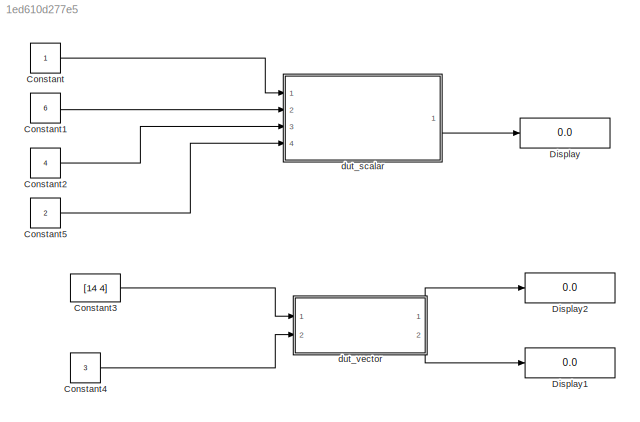
MODEL slx_1ed610d277e5
KIND model
CONFIG AbsTol = auto
CONFIG FixedStep = auto
CONFIG MaxStep = auto
CONFIG MinStep = auto
CONFIG RelTol = 1e-3
CONFIG SampleTimeConstraint = Unconstrained
CONFIG Solver = FixedStepDiscrete
CONFIG SolverMode = SingleTasking
CONFIG SolverName = FixedStepDiscrete
CONFIG StartTime = 0.0
CONFIG StopTime = 3
BLOCK [Constant] Constant
  OutDataTypeStr = int8
  SampleTime = 1
BLOCK [Constant] Constant1
  OutDataTypeStr = int8
  SampleTime = 1
  Value = 6
BLOCK [Constant] Constant2
  OutDataTypeStr = int8
  SampleTime = 1
  Value = 4
BLOCK [Constant] Constant3
  OutDataTypeStr = int8
  SampleTime = 1
  Value = [14 4]
BLOCK [Constant] Constant4
  OutDataTypeStr = int8
  SampleTime = 1
  Value = 3
BLOCK [Constant] Constant5
  OutDataTypeStr = int8
  SampleTime = 1
  Value = 2
BLOCK [Display] Display
  Decimation = 1
  Ports = [1]
BLOCK [Display] Display1
  Decimation = 1
  Ports = [1]
BLOCK [Display] Display2
  Decimation = 1
  Ports = [1]
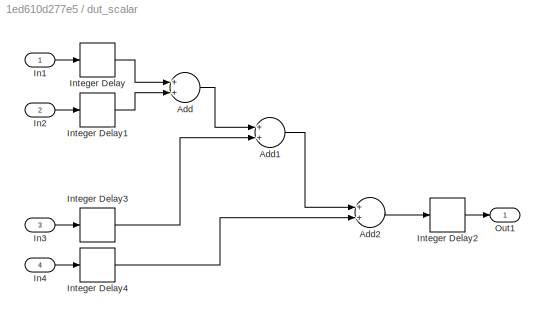
BLOCK [SubSystem] dut_scalar
  Ports = [4, 1]
  RequestExecContextInheritance = off
  Variant = off
BLOCK [Sum] dut_scalar/Add
  InputSameDT = off
  OutDataTypeStr = fixdt(1,7,0)
  Ports = [2, 1]
  RndMeth = Nearest
  SaturateOnIntegerOverflow = off
BLOCK [Sum] dut_scalar/Add1
  InputSameDT = off
  Ports = [2, 1]
  RndMeth = Nearest
  SaturateOnIntegerOverflow = off
BLOCK [Sum] dut_scalar/Add2
  InputSameDT = off
  Ports = [2, 1]
  RndMeth = Nearest
  SaturateOnIntegerOverflow = off
BLOCK [Inport] dut_scalar/In1
  IconDisplay = Port number
BLOCK [Inport] dut_scalar/In2
  IconDisplay = Port number
  Port = 2
BLOCK [Inport] dut_scalar/In3
  IconDisplay = Port number
  Port = 3
BLOCK [Inport] dut_scalar/In4
  IconDisplay = Port number
  Port = 4
BLOCK [Delay] dut_scalar/Integer Delay
  DelayLength = 1
  InputPortMap = u0
  InputProcessing = Inherited
  Ports = [1, 1]
  UserDataPersistent = on
BLOCK [Delay] dut_scalar/Integer Delay1
  DelayLength = 1
  InputPortMap = u0
  InputProcessing = Inherited
  Ports = [1, 1]
  UserDataPersistent = on
BLOCK [Delay] dut_scalar/Integer Delay2
  DelayLength = 1
  InputPortMap = u0
  InputProcessing = Inherited
  Ports = [1, 1]
  UserDataPersistent = on
BLOCK [Delay] dut_scalar/Integer Delay3
  DelayLength = 1
  InputPortMap = u0
  InputProcessing = Inherited
  Ports = [1, 1]
  UserDataPersistent = on
BLOCK [Delay] dut_scalar/Integer Delay4
  DelayLength = 1
  InputPortMap = u0
  InputProcessing = Inherited
  Ports = [1, 1]
  UserDataPersistent = on
BLOCK [Outport] dut_scalar/Out1
  IconDisplay = Port number
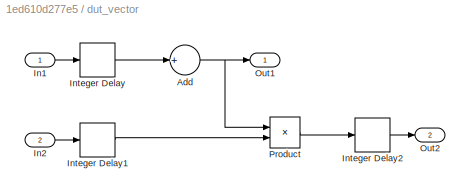
BLOCK [SubSystem] dut_vector
  Ports = [2, 2]
  RequestExecContextInheritance = off
  Variant = off
BLOCK [Sum] dut_vector/Add
  InputSameDT = off
  Inputs = +
  OutDataTypeStr = Inherit: Inherit via internal rule
  Ports = [1, 1]
  SaturateOnIntegerOverflow = off
BLOCK [Inport] dut_vector/In1
  IconDisplay = Port number
BLOCK [Inport] dut_vector/In2
  IconDisplay = Port number
  Port = 2
BLOCK [Delay] dut_vector/Integer Delay
  DelayLength = 1
  InputPortMap = u0
  InputProcessing = Inherited
  Ports = [1, 1]
  UserDataPersistent = on
BLOCK [Delay] dut_vector/Integer Delay1
  DelayLength = 1
  InputPortMap = u0
  InputProcessing = Inherited
  Ports = [1, 1]
  UserDataPersistent = on
BLOCK [Delay] dut_vector/Integer Delay2
  DelayLength = 1
  InputPortMap = u0
  InputProcessing = Inherited
  Ports = [1, 1]
  UserDataPersistent = on
BLOCK [Outport] dut_vector/Out1
  IconDisplay = Port number
BLOCK [Outport] dut_vector/Out2
  IconDisplay = Port number
  Port = 2
BLOCK [Product] dut_vector/Product
  InputSameDT = off
  OutDataTypeStr = Inherit: Inherit via internal rule
  Ports = [2, 1]
  SaturateOnIntegerOverflow = off
LINE Constant1:1 -> dut_scalar:2
LINE Constant2:1 -> dut_scalar:3
LINE Constant3:1 -> dut_vector:1
LINE Constant4:1 -> dut_vector:2
LINE Constant5:1 -> dut_scalar:4
LINE Constant:1 -> dut_scalar:1
LINE dut_scalar/Add1:1 -> dut_scalar/Add2:1
LINE dut_scalar/Add2:1 -> dut_scalar/Integer Delay2:1
LINE dut_scalar/Add:1 -> dut_scalar/Add1:1
LINE dut_scalar/In1:1 -> dut_scalar/Integer Delay:1
LINE dut_scalar/In2:1 -> dut_scalar/Integer Delay1:1
LINE dut_scalar/In3:1 -> dut_scalar/Integer Delay3:1
LINE dut_scalar/In4:1 -> dut_scalar/Integer Delay4:1
LINE dut_scalar/Integer Delay1:1 -> dut_scalar/Add:2
LINE dut_scalar/Integer Delay2:1 -> dut_scalar/Out1:1
LINE dut_scalar/Integer Delay3:1 -> dut_scalar/Add1:2
LINE dut_scalar/Integer Delay4:1 -> dut_scalar/Add2:2
LINE dut_scalar/Integer Delay:1 -> dut_scalar/Add:1
LINE dut_scalar:1 -> Display:1
NET dut_vector/Add:1 -> dut_vector/Out1:1, dut_vector/Product:1
LINE dut_vector/In1:1 -> dut_vector/Integer Delay:1
LINE dut_vector/In2:1 -> dut_vector/Integer Delay1:1
LINE dut_vector/Integer Delay1:1 -> dut_vector/Product:2
LINE dut_vector/Integer Delay2:1 -> dut_vector/Out2:1
LINE dut_vector/Integer Delay:1 -> dut_vector/Add:1
LINE dut_vector/Product:1 -> dut_vector/Integer Delay2:1
LINE dut_vector:1 -> Display2:1
LINE dut_vector:2 -> Display1:1
note: NET lines group one-source signal fan-out (src -> all destinations, sorted); 1:1 wires keep LINE
